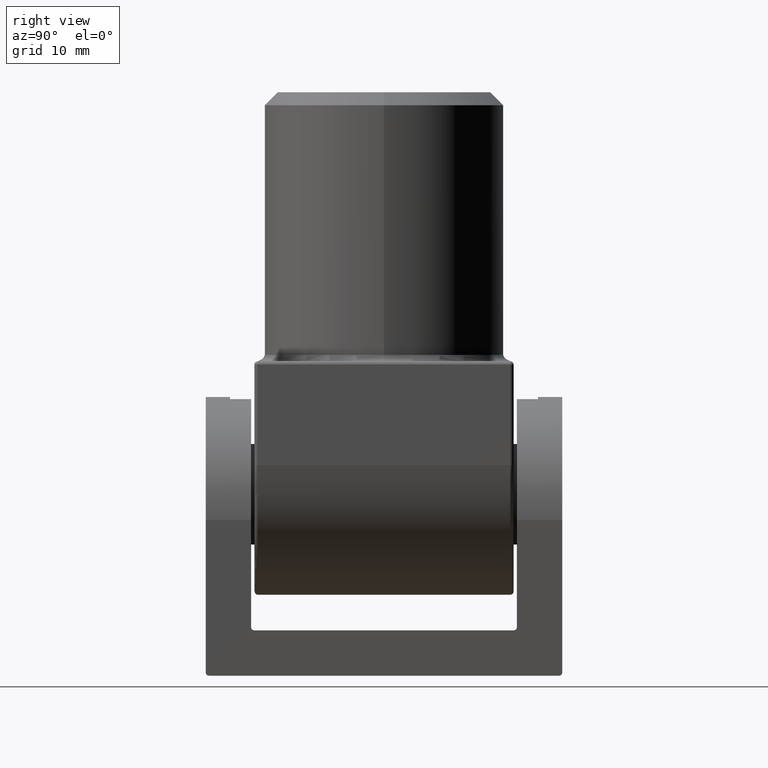
[diagram: clean part render]
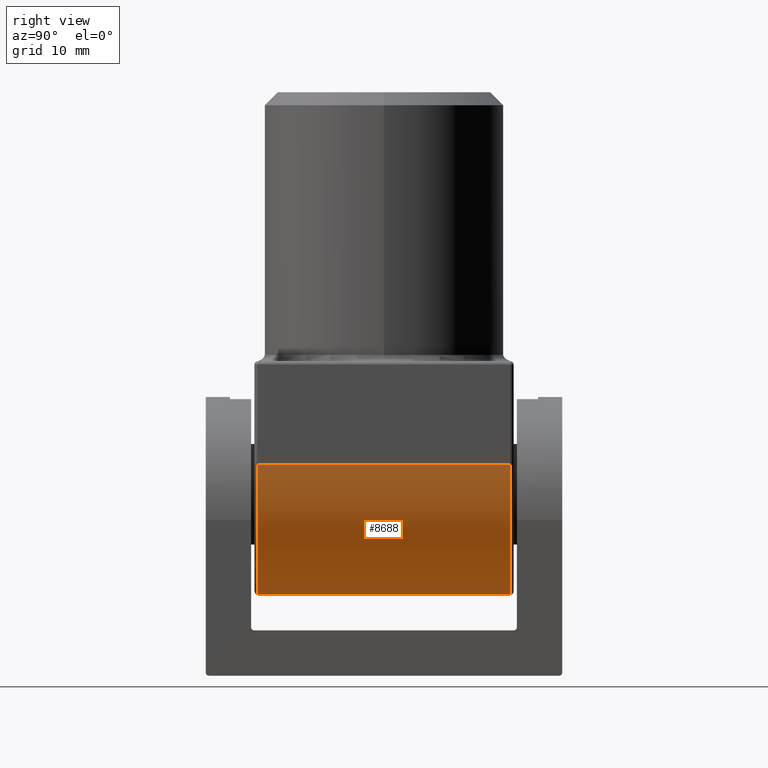
[diagram: same view with one face highlighted and labeled with its STEP entity id]
A machine part, right view. The second image highlights one B-rep face of the part: STEP entity #8688.
In plain terms, the highlighted cylindrical surface (partial cylindrical patch) has radius 20 mm, axis along (-0, -1, -0).
Its self-contained STEP definition (entity closure, byte-faithful):
#1169 = EDGE_CURVE ( 'NONE', #14218, #18558, #14826, .T. ) ;
#1258 = EDGE_CURVE ( 'NONE', #18558, #4827, #13885, .T. ) ;
#1560 = EDGE_CURVE ( 'NONE', #15403, #4827, #16859, .T. ) ;
#1878 = CIRCLE ( 'NONE', #18605, 20.00000000000000355 ) ;
#2496 = CARTESIAN_POINT ( 'NONE',  ( 0.000000000000000000, 20.00000000000000000, -35.99999999999999289 ) ) ;
#3220 = DIRECTION ( 'NONE',  ( 0.000000000000000000, 1.000000000000000000, 0.000000000000000000 ) ) ;
#3558 = AXIS2_PLACEMENT_3D ( 'NONE', #17789, #10559, #9030 ) ;
#3681 = CYLINDRICAL_SURFACE ( 'NONE', #3558, 20.00000000000000355 ) ;
#4556 = DIRECTION ( 'NONE',  ( 0.000000000000000000, 0.000000000000000000, 1.000000000000000000 ) ) ;
#4827 = VERTEX_POINT ( 'NONE', #18114 ) ;
#6495 = ORIENTED_EDGE ( 'NONE', *, *, #1169, .T. ) ;
#6583 = DIRECTION ( 'NONE',  ( 0.000000000000000000, 0.000000000000000000, 1.000000000000000000 ) ) ;
#7844 = EDGE_CURVE ( 'NONE', #15403, #14218, #1878, .T. ) ;
#7905 = EDGE_LOOP ( 'NONE', ( #10579, #15013, #6495, #15739 ) ) ;
#8688 = ADVANCED_FACE ( 'NONE', ( #12350 ), #3681, .T. ) ;
#9030 = DIRECTION ( 'NONE',  ( 0.000000000000000000, 0.000000000000000000, -1.000000000000000000 ) ) ;
#10559 = DIRECTION ( 'NONE',  ( -0.000000000000000000, -1.000000000000000000, -0.000000000000000000 ) ) ;
#10579 = ORIENTED_EDGE ( 'NONE', *, *, #1560, .F. ) ;
#11541 = AXIS2_PLACEMENT_3D ( 'NONE', #14825, #3220, #4556 ) ;
#12350 = FACE_OUTER_BOUND ( 'NONE', #7905, .T. ) ;
#12973 = VECTOR ( 'NONE', #14488, 1000.000000000000000 ) ;
#13089 = CARTESIAN_POINT ( 'NONE',  ( 20.00000000000000355, 20.00000000000000000, -15.99999999999998579 ) ) ;
#13885 = CIRCLE ( 'NONE', #11541, 20.00000000000000355 ) ;
#14107 = CARTESIAN_POINT ( 'NONE',  ( 0.000000000000000000, 19.50000000000000000, -35.99999999999999289 ) ) ;
#14113 = VECTOR ( 'NONE', #15967, 1000.000000000000000 ) ;
#14218 = VERTEX_POINT ( 'NONE', #14687 ) ;
#14488 = DIRECTION ( 'NONE',  ( -0.000000000000000000, -1.000000000000000000, -0.000000000000000000 ) ) ;
#14687 = CARTESIAN_POINT ( 'NONE',  ( 20.00000000000000355, 19.50000000000000000, -15.99999999999998579 ) ) ;
#14825 = CARTESIAN_POINT ( 'NONE',  ( 0.000000000000000000, -19.50000000000000000, -15.99999999999998579 ) ) ;
#14826 = LINE ( 'NONE', #13089, #14113 ) ;
#15013 = ORIENTED_EDGE ( 'NONE', *, *, #7844, .T. ) ;
#15403 = VERTEX_POINT ( 'NONE', #14107 ) ;
#15509 = CARTESIAN_POINT ( 'NONE',  ( 0.000000000000000000, 19.50000000000000000, -15.99999999999998579 ) ) ;
#15739 = ORIENTED_EDGE ( 'NONE', *, *, #1258, .T. ) ;
#15967 = DIRECTION ( 'NONE',  ( -0.000000000000000000, -1.000000000000000000, -0.000000000000000000 ) ) ;
#16859 = LINE ( 'NONE', #2496, #12973 ) ;
#17789 = CARTESIAN_POINT ( 'NONE',  ( 0.000000000000000000, 20.00000000000000000, -15.99999999999998579 ) ) ;
#18114 = CARTESIAN_POINT ( 'NONE',  ( 0.000000000000000000, -19.50000000000000000, -35.99999999999999289 ) ) ;
#18343 = DIRECTION ( 'NONE',  ( -0.000000000000000000, -1.000000000000000000, -0.000000000000000000 ) ) ;
#18398 = CARTESIAN_POINT ( 'NONE',  ( 20.00000000000000355, -19.50000000000000000, -15.99999999999998579 ) ) ;
#18558 = VERTEX_POINT ( 'NONE', #18398 ) ;
#18605 = AXIS2_PLACEMENT_3D ( 'NONE', #15509, #18343, #6583 ) ;